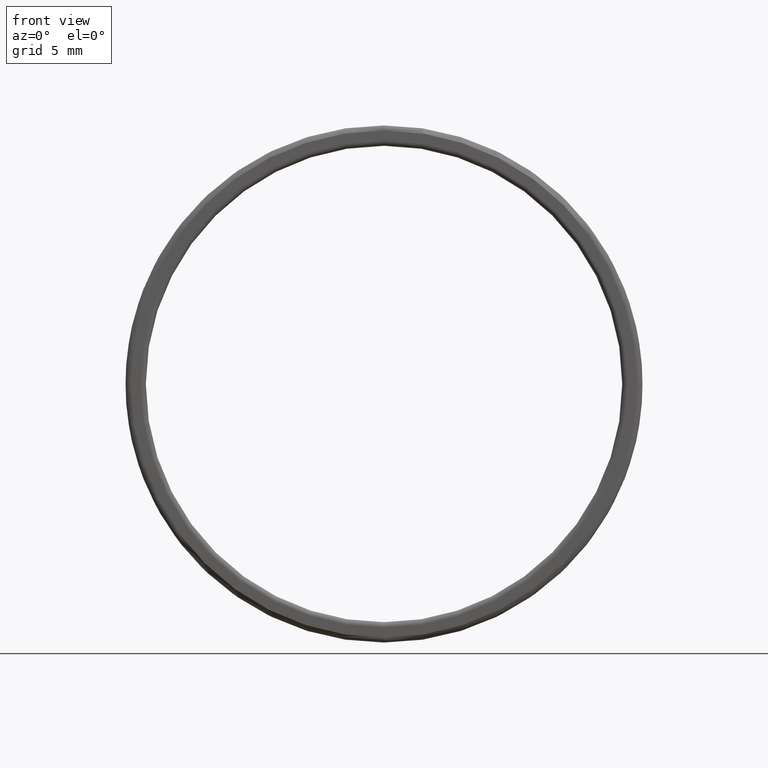
[diagram: clean part render]
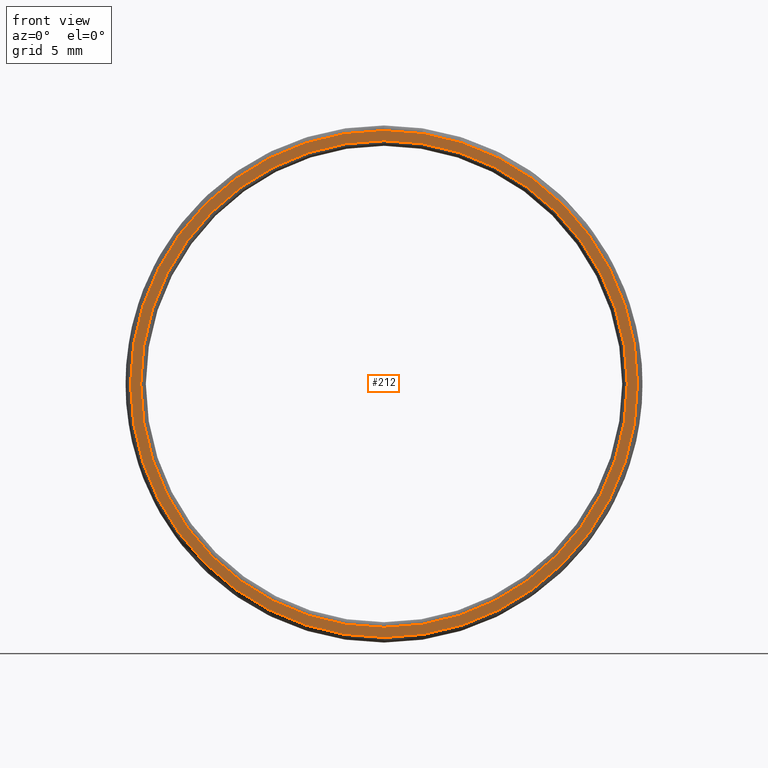
[diagram: same view with one face highlighted and labeled with its STEP entity id]
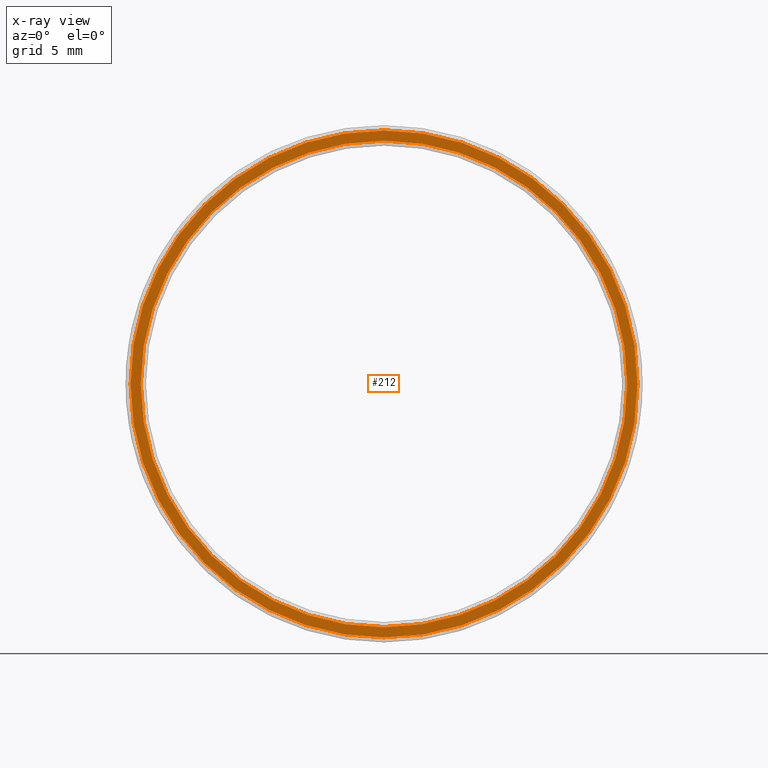
[diagram: x-ray of the same camera — body ghosted, the highlighted face saturated]
A machine part, front view. The second image highlights one B-rep face of the part: STEP entity #212.
The next image is the same camera in x-ray: the body ghosted, the highlighted face saturated — about 0% of this face is hidden behind the body in this view.
In plain terms, the highlighted planar face has unit normal (-0, 1, 0).
Its self-contained STEP definition (entity closure, byte-faithful):
#7 = AXIS2_PLACEMENT_3D ( 'NONE', #276, #204, #415 ) ;
#16 = DIRECTION ( 'NONE',  ( 0.0000000000000000000, -1.000000000000000000, 0.0000000000000000000 ) ) ;
#32 = CIRCLE ( 'NONE', #373, 11.94999999999999929 ) ;
#60 = VERTEX_POINT ( 'NONE', #190 ) ;
#63 = ORIENTED_EDGE ( 'NONE', *, *, #306, .T. ) ;
#67 = VERTEX_POINT ( 'NONE', #254 ) ;
#86 = CIRCLE ( 'NONE', #369, 12.44999999999999929 ) ;
#90 = DIRECTION ( 'NONE',  ( 0.0000000000000000000, -1.000000000000000000, 0.0000000000000000000 ) ) ;
#92 = DIRECTION ( 'NONE',  ( 0.0000000000000000000, 0.0000000000000000000, 1.000000000000000000 ) ) ;
#104 = AXIS2_PLACEMENT_3D ( 'NONE', #105, #16, #186 ) ;
#105 = CARTESIAN_POINT ( 'NONE',  ( 0.0000000000000000000, -0.5000000000000015543, 0.0000000000000000000 ) ) ;
#122 = FACE_OUTER_BOUND ( 'NONE', #191, .T. ) ;
#123 = VERTEX_POINT ( 'NONE', #265 ) ;
#155 = VERTEX_POINT ( 'NONE', #300 ) ;
#160 = EDGE_CURVE ( 'NONE', #60, #67, #86, .T. ) ;
#178 = DIRECTION ( 'NONE',  ( -0.0000000000000000000, 1.000000000000000000, -0.0000000000000000000 ) ) ;
#186 = DIRECTION ( 'NONE',  ( 0.0000000000000000000, 0.0000000000000000000, 1.000000000000000000 ) ) ;
#190 = CARTESIAN_POINT ( 'NONE',  ( 0.0000000000000000000, -0.5000000000000015543, 12.44999999999999929 ) ) ;
#191 = EDGE_LOOP ( 'NONE', ( #347, #341 ) ) ;
#199 = ORIENTED_EDGE ( 'NONE', *, *, #262, .T. ) ;
#204 = DIRECTION ( 'NONE',  ( -0.0000000000000000000, 1.000000000000000000, 0.0000000000000000000 ) ) ;
#212 = ADVANCED_FACE ( 'NONE', ( #314, #122 ), #242, .F. ) ;
#232 = CIRCLE ( 'NONE', #417, 11.94999999999999929 ) ;
#242 = PLANE ( 'NONE',  #7 ) ;
#254 = CARTESIAN_POINT ( 'NONE',  ( 1.539993349927796539E-15, -0.5000000000000015543, -12.44999999999999929 ) ) ;
#256 = CIRCLE ( 'NONE', #104, 12.44999999999999929 ) ;
#262 = EDGE_CURVE ( 'NONE', #123, #155, #32, .T. ) ;
#265 = CARTESIAN_POINT ( 'NONE',  ( 0.0000000000000000000, -0.5000000000000013323, 11.94999999999999929 ) ) ;
#276 = CARTESIAN_POINT ( 'NONE',  ( 11.69999999999999929, -0.5000000000000015543, 0.0000000000000000000 ) ) ;
#290 = EDGE_LOOP ( 'NONE', ( #199, #63 ) ) ;
#300 = CARTESIAN_POINT ( 'NONE',  ( 1.463452924981086874E-15, -0.5000000000000013323, -11.94999999999999929 ) ) ;
#306 = EDGE_CURVE ( 'NONE', #155, #123, #232, .T. ) ;
#307 = CARTESIAN_POINT ( 'NONE',  ( 0.0000000000000000000, -0.5000000000000015543, 0.0000000000000000000 ) ) ;
#314 = FACE_BOUND ( 'NONE', #290, .T. ) ;
#341 = ORIENTED_EDGE ( 'NONE', *, *, #421, .T. ) ;
#346 = DIRECTION ( 'NONE',  ( 0.0000000000000000000, 0.0000000000000000000, 1.000000000000000000 ) ) ;
#347 = ORIENTED_EDGE ( 'NONE', *, *, #160, .T. ) ;
#352 = DIRECTION ( 'NONE',  ( 0.0000000000000000000, 0.0000000000000000000, 1.000000000000000000 ) ) ;
#369 = AXIS2_PLACEMENT_3D ( 'NONE', #307, #90, #346 ) ;
#373 = AXIS2_PLACEMENT_3D ( 'NONE', #386, #380, #92 ) ;
#380 = DIRECTION ( 'NONE',  ( -0.0000000000000000000, 1.000000000000000000, -0.0000000000000000000 ) ) ;
#386 = CARTESIAN_POINT ( 'NONE',  ( 0.0000000000000000000, -0.5000000000000015543, 0.0000000000000000000 ) ) ;
#415 = DIRECTION ( 'NONE',  ( 0.0000000000000000000, 0.0000000000000000000, 1.000000000000000000 ) ) ;
#417 = AXIS2_PLACEMENT_3D ( 'NONE', #427, #178, #352 ) ;
#421 = EDGE_CURVE ( 'NONE', #67, #60, #256, .T. ) ;
#427 = CARTESIAN_POINT ( 'NONE',  ( 0.0000000000000000000, -0.5000000000000015543, 0.0000000000000000000 ) ) ;